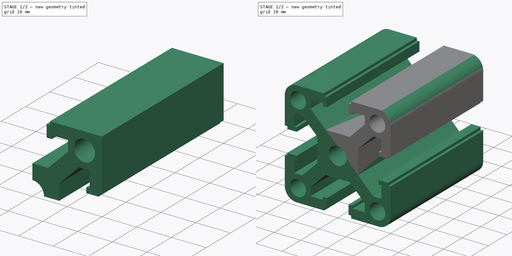
[diagram: build sequence overview — one tinted view per stage of 2, left to right]
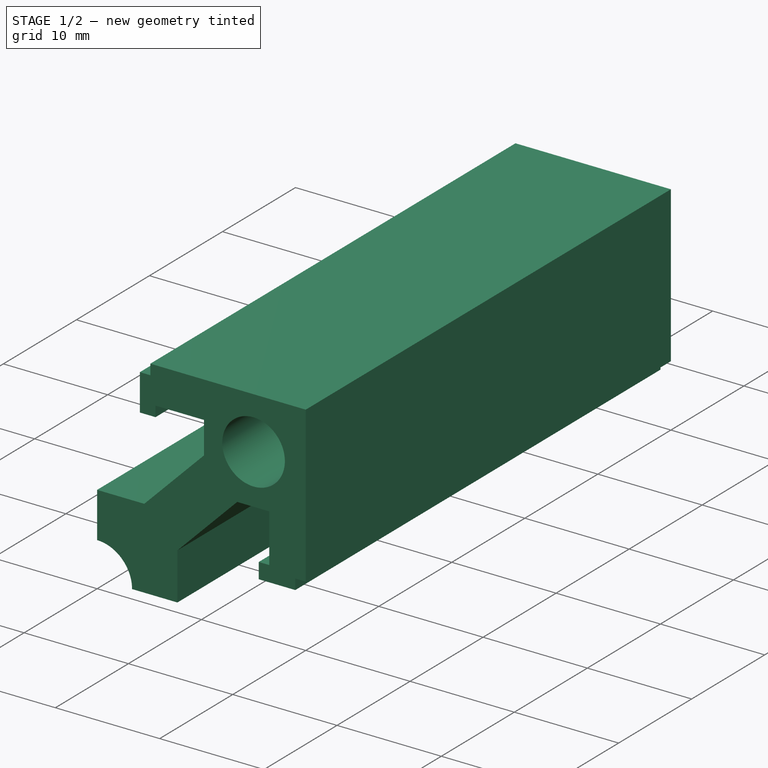
[diagram: stage 1 of 2 — iso view after this stage's code; geometry added in this stage tinted green]
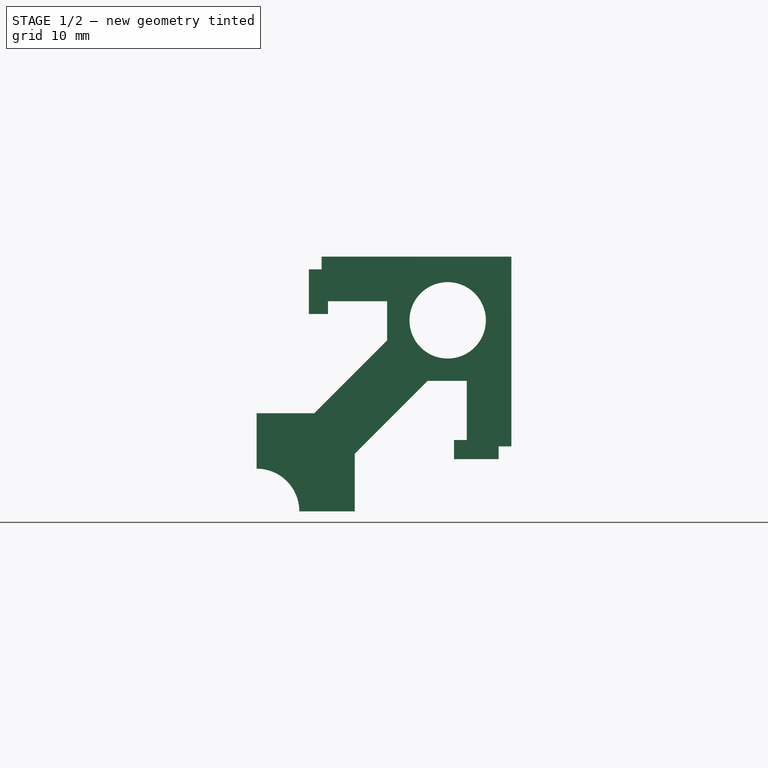
[diagram: stage 1 of 2 — front view after this stage's code; geometry added in this stage tinted green]
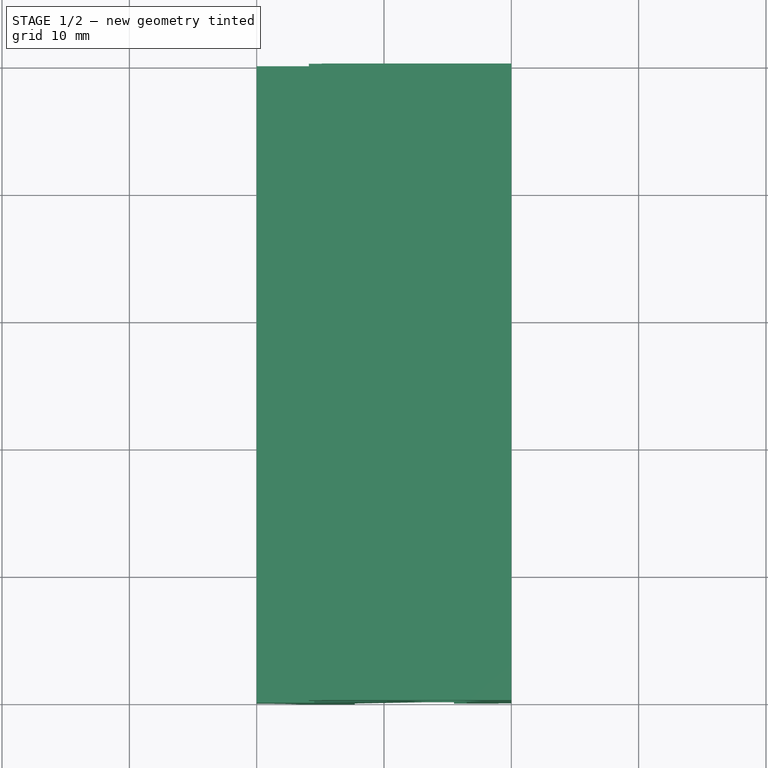
[diagram: stage 1 of 2 — top view after this stage's code; geometry added in this stage tinted green]
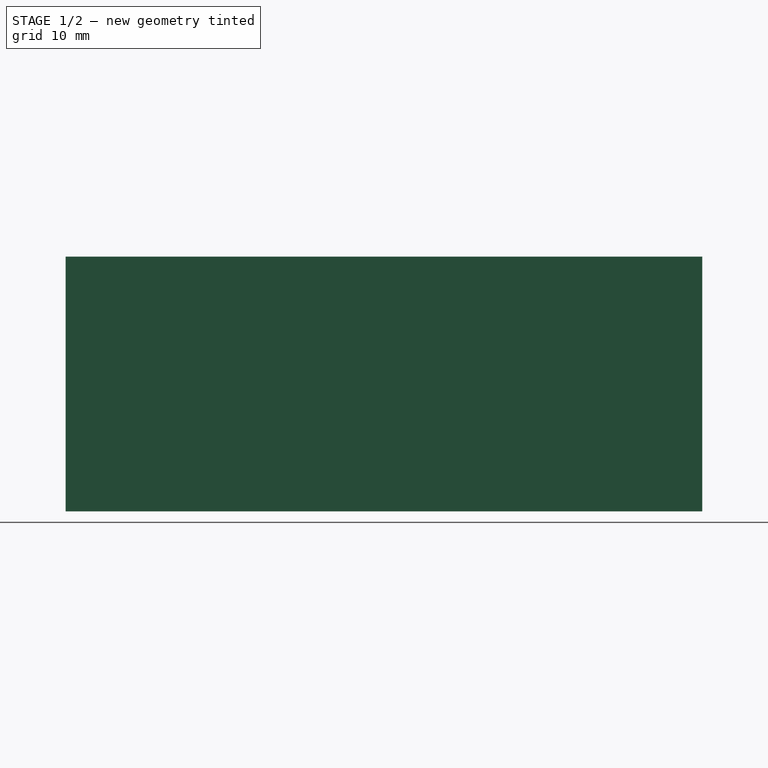
[diagram: stage 1 of 2 — right view after this stage's code; geometry added in this stage tinted green]
FCSTD DOCUMENT  (FreeCAD 1.0R39319 (Git))
Label: AlmProfile-4040
License: All rights reserved
LicenseURL: https://en.wikipedia.org/wiki/All_rights_reserved
objects: Sketcher::SketchObject×2, PartDesign::Pad×1, PartDesign::Pocket×1, PartDesign::PolarPattern×1, PartDesign::Fillet×1, PartDesign::Body×1
note: 16 computed .brp shape members not serialized (recipe doc carries the construction recipe); baked Part::Feature solids carry a one-line shape summary decoded from their .brp

FEATURE [Sketcher::SketchObject] Sketch
  ArcFitTolerance = 1e-06
  AttachmentSupport = -> [XZ_Plane]
  FullyConstrained = true
  MakeInternals = false
  MapMode = 5
  Placement = pos=(0,0,0) rot=(1,0,0;1.5708rad)
  sketch-geometry (28):
    g0: LineSegment StartX=2e-16 StartY=7.7 StartZ=0 EndX=4.51802 EndY=7.7 EndZ=0
    g1: LineSegment StartX=7.7 StartY=4.51802 StartZ=0 EndX=7.7 EndY=0 EndZ=0
    g2: LineSegment StartX=4.1 StartY=15.5 StartZ=0 EndX=4.1 EndY=20 EndZ=0
    g3: LineSegment StartX=4.1 StartY=20 StartZ=0 EndX=20 EndY=20 EndZ=0
    g4: LineSegment StartX=20 StartY=20 StartZ=0 EndX=20 EndY=4.1 EndZ=0
    g5: LineSegment StartX=20 StartY=4.1 StartZ=0 EndX=15.5 EndY=4.1 EndZ=0
    g6: ArcOfCircle CenterX=0 CenterY=0 CenterZ=0 NormalX=0 NormalY=0 NormalZ=1 AngleXU=0 Radius=3.35 StartAngle=0 EndAngle=1.5708
    g7: LineSegment StartX=2e-16 StartY=7.7 StartZ=0 EndX=2e-16 EndY=3.35 EndZ=0
    g8: LineSegment StartX=3.35 StartY=0 StartZ=0 EndX=7.7 EndY=0 EndZ=0
    g9: LineSegment [constr] StartX=20 StartY=20 StartZ=0 EndX=20 EndY=0 EndZ=0
    g10: LineSegment [constr] StartX=20 StartY=20 StartZ=0 EndX=0 EndY=20 EndZ=0
    g11: Circle CenterX=15 CenterY=15 CenterZ=0 NormalX=0 NormalY=0 NormalZ=1 AngleXU=0 Radius=3
    g12: LineSegment [constr] StartX=15 StartY=15 StartZ=0 EndX=0 EndY=15 EndZ=0
    g13: LineSegment [constr] StartX=0 StartY=15 StartZ=0 EndX=0 EndY=0 EndZ=0
    g14: LineSegment [constr] StartX=0 StartY=0 StartZ=0 EndX=15 EndY=0 EndZ=0
    g15: LineSegment [constr] StartX=15 StartY=0 StartZ=0 EndX=15 EndY=15 EndZ=0
    g16: LineSegment [constr] StartX=7.7 StartY=4.51802 StartZ=0 EndX=20 EndY=4.51802 EndZ=0
    g17: LineSegment StartX=4.51802 StartY=7.7 StartZ=0 EndX=10.25 EndY=13.432 EndZ=0
    g18: LineSegment StartX=10.25 StartY=13.432 StartZ=0 EndX=10.25 EndY=16.5 EndZ=0
    g19: LineSegment StartX=10.25 StartY=16.5 StartZ=0 EndX=5.6 EndY=16.5 EndZ=0
    g20: LineSegment StartX=5.6 StartY=16.5 StartZ=0 EndX=5.6 EndY=15.5 EndZ=0
    g21: LineSegment StartX=5.6 StartY=15.5 StartZ=0 EndX=4.1 EndY=15.5 EndZ=0
    g22: LineSegment StartX=7.7 StartY=4.51802 StartZ=0 EndX=13.432 EndY=10.25 EndZ=0
    g23: LineSegment StartX=13.432 StartY=10.25 StartZ=0 EndX=16.5 EndY=10.25 EndZ=0
    g24: LineSegment StartX=16.5 StartY=10.25 StartZ=0 EndX=16.5 EndY=5.6 EndZ=0
    g25: LineSegment StartX=16.5 StartY=5.6 StartZ=0 EndX=15.5 EndY=5.6 EndZ=0
    g26: LineSegment StartX=15.5 StartY=5.6 StartZ=0 EndX=15.5 EndY=4.1 EndZ=0
    g27: LineSegment [constr] StartX=10.25 StartY=13.432 StartZ=0 EndX=13.432 EndY=10.25 EndZ=0
  constraints (81):
    c: PointOnObject(g0,g-2)
    c: Horizontal(g0)
    c: PointOnObject(g1,g-1)
    c: Vertical(g1)
    c: Equal(g0,g1)
    c: Vertical(g2)
    c: Coincident(g2,g3)
    c: Horizontal(g3)
    c: Coincident(g3,g4)
    c: Vertical(g4)
    c: Coincident(g4,g5)
    c: Horizontal(g5)
    c: DistanceX(g-1,g3) = 20
    c: Equal(g4,g3)
    c: Coincident(g7,g0)
    c: Coincident(g7,g6)
    c: Vertical(g7)
    c: Coincident(g8,g6)
    c: Coincident(g8,g1)
    c: Horizontal(g8)
    c: Radius(g6) = 3.35
    c: Coincident(g6,g-1)
    c: Equal(g8,g7)
    c: Coincident(g9,g3)
    c: PointOnObject(g9,g-1)
    c: Vertical(g9)
    c: Coincident(g10,g3)
    c: PointOnObject(g10,g-2)
    c: Horizontal(g10)
    c: Equal(g10,g9)
    c: Coincident(g12,g13)
    c: Coincident(g13,g14)
    c: Coincident(g14,g15)
    c: Coincident(g15,g12)
    c: Horizontal(g12)
    c: Horizontal(g14)
    c: Vertical(g13)
    c: Vertical(g15)
    c: Coincident(g12,g11)
    c: Coincident(g13,g6)
    c: Equal(g15,g12)
    c: DistanceX(g12,g12) = 15
    c: Coincident(g16,g1)
    c: PointOnObject(g16,g9)
    c: Horizontal(g16)
    c: Coincident(g0,g17)
    c: Coincident(g17,g18)
    c: Vertical(g18)
    c: Coincident(g18,g19)
    c: Horizontal(g19)
    c: Coincident(g19,g20)
    c: Coincident(g20,g21)
    c: Coincident(g21,g2)
    c: Coincident(g1,g22)
    c: Coincident(g22,g23)
    c: Horizontal(g23)
    c: Coincident(g23,g24)
    c: Vertical(g24)
    c: Coincident(g24,g25)
    c: Horizontal(g25)
    c: Coincident(g25,g26)
    c: Coincident(g26,g5)
    c: Vertical(g26)
    c: Vertical(g20)
    c: Horizontal(g21)
    c: Parallel(g22,g17)
    c: Coincident(g27,g17)
    c: Coincident(g27,g22)
    c: Angle(g16,g22) = 0.785398
    c: Equal(g2,g5)
    c: Equal(g21,g26)
    c: Equal(g24,g19)
    c: DistanceX(g-1,g2) = 4.1
    c: DistanceX(g-1,g18) = 10.25
    c: Diameter(g11) = 6
    c: DistanceY(g2,g2) = 4.5
    c: DistanceY(g0,g2) = 12.3
    c: Equal(g18,g23)
    c: Equal(g27,g2)
    c: DistanceY(g19,g2) = 3.5
    c: Distance(g21,g21) = 1.5
FEATURE [PartDesign::Pad] Pad
  Direction = (0,-1,2e-16)
  Length = 50
  Length2 = 10
  Placement = pos=(0,0,0) rot=(1,0,0;1.5708rad)
  Profile = -> Sketch
  ReferenceAxis = -> Sketch [N_Axis]
  Refine = true
  Suppressed = false
  Type = 0
FEATURE [Sketcher::SketchObject] Sketch001
  ArcFitTolerance = 1e-06
  AttachmentSupport = -> [XZ_Plane]
  ExternalGeometry = -> [Pad]
  FullyConstrained = true
  MakeInternals = false
  MapMode = 5
  Placement = pos=(0,0,0) rot=(1,0,0;1.5708rad)
  sketch-geometry (8):
    g0: LineSegment StartX=4.1 StartY=20 StartZ=0 EndX=4.1 EndY=19 EndZ=0
    g1: LineSegment StartX=4.1 StartY=19 StartZ=0 EndX=5.1 EndY=19 EndZ=0
    g2: LineSegment StartX=5.1 StartY=19 StartZ=0 EndX=5.1 EndY=20 EndZ=0
    g3: LineSegment StartX=5.1 StartY=20 StartZ=0 EndX=4.1 EndY=20 EndZ=0
    g4: LineSegment StartX=20 StartY=4.1 StartZ=0 EndX=20 EndY=5.1 EndZ=0
    g5: LineSegment StartX=20 StartY=5.1 StartZ=0 EndX=19 EndY=5.1 EndZ=0
    g6: LineSegment StartX=19 StartY=5.1 StartZ=0 EndX=19 EndY=4.1 EndZ=0
    g7: LineSegment StartX=19 StartY=4.1 StartZ=0 EndX=20 EndY=4.1 EndZ=0
  constraints (22):
    c: Coincident(g0,g1)
    c: Coincident(g1,g2)
    c: Coincident(g2,g3)
    c: Coincident(g3,g0)
    c: Vertical(g0)
    c: Vertical(g2)
    c: Horizontal(g1)
    c: Horizontal(g3)
    c: Coincident(g4,g5)
    c: Coincident(g5,g6)
    c: Coincident(g6,g7)
    c: Coincident(g7,g4)
    c: Vertical(g4)
    c: Vertical(g6)
    c: Horizontal(g5)
    c: Horizontal(g7)
    c: Equal(g6,g7)
    c: Equal(g7,g2)
    c: Equal(g2,g1)
    c: Coincident(g4,g-4)
    c: Coincident(g0,g-3)
    c: DistanceX(g3,g3) = 1
FEATURE [PartDesign::Pocket] Pocket
  BaseFeature = -> Pad
  Direction = (0,1,-2e-16)
  Length = 5
  Length2 = 5
  Placement = pos=(0,0,0) rot=(1,0,0;1.5708rad)
  Profile = -> Sketch001
  ReferenceAxis = -> Sketch001 [N_Axis]
  Refine = true
  Reversed = true
  Suppressed = false
  Type = 1
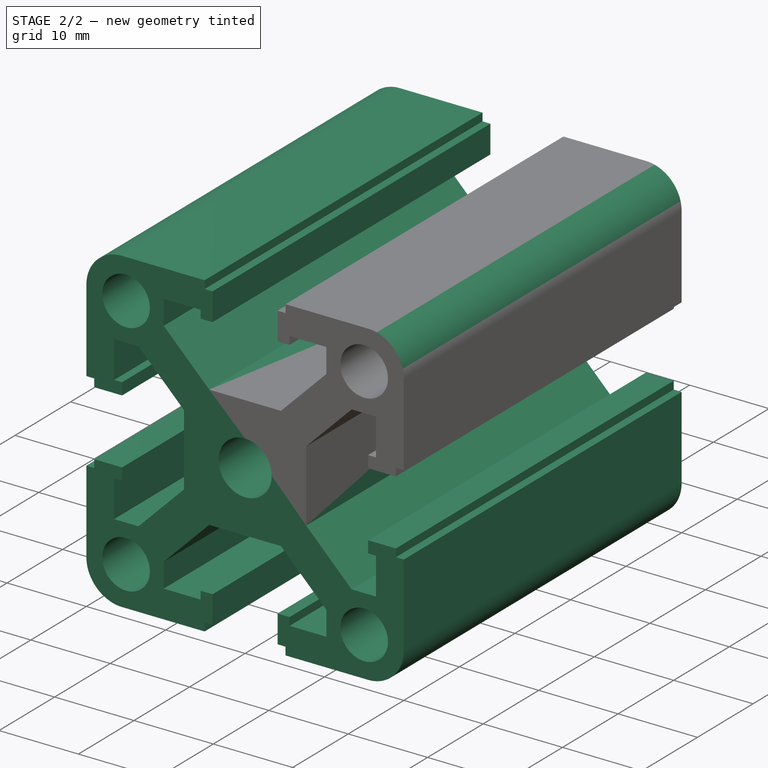
[diagram: stage 2 of 2 — iso view after this stage's code; geometry added in this stage tinted green]
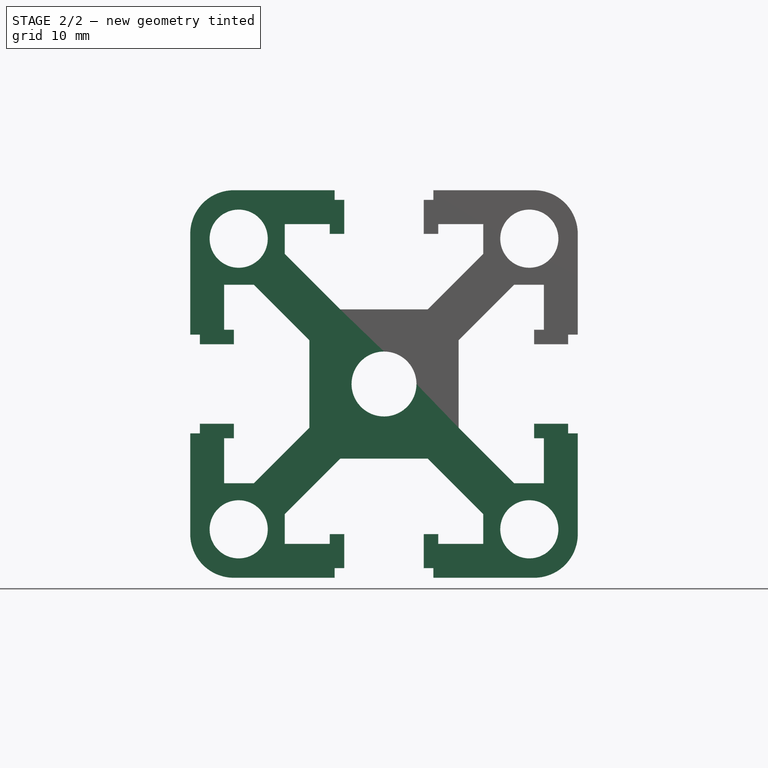
[diagram: stage 2 of 2 — front view after this stage's code; geometry added in this stage tinted green]
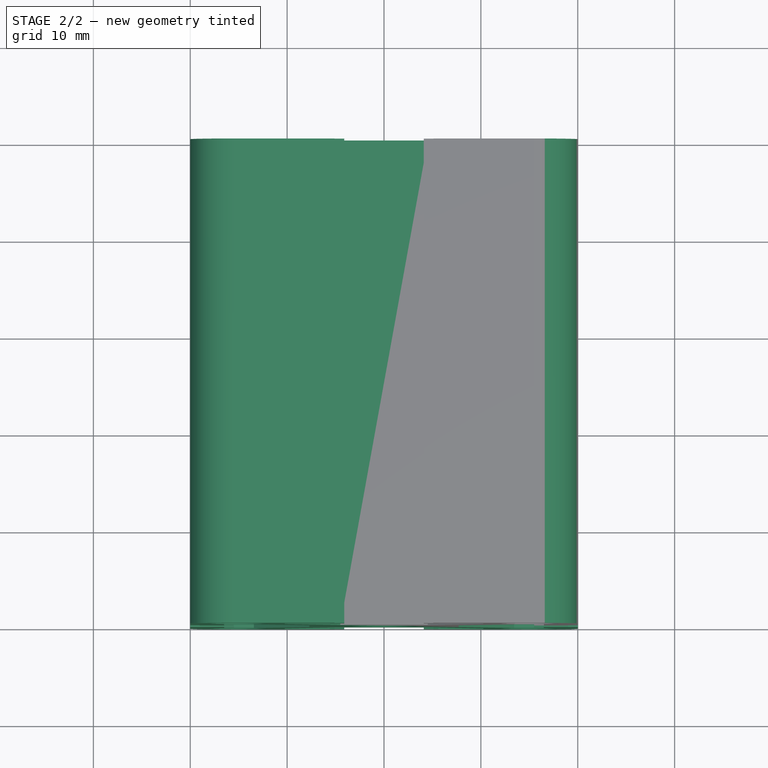
[diagram: stage 2 of 2 — top view after this stage's code; geometry added in this stage tinted green]
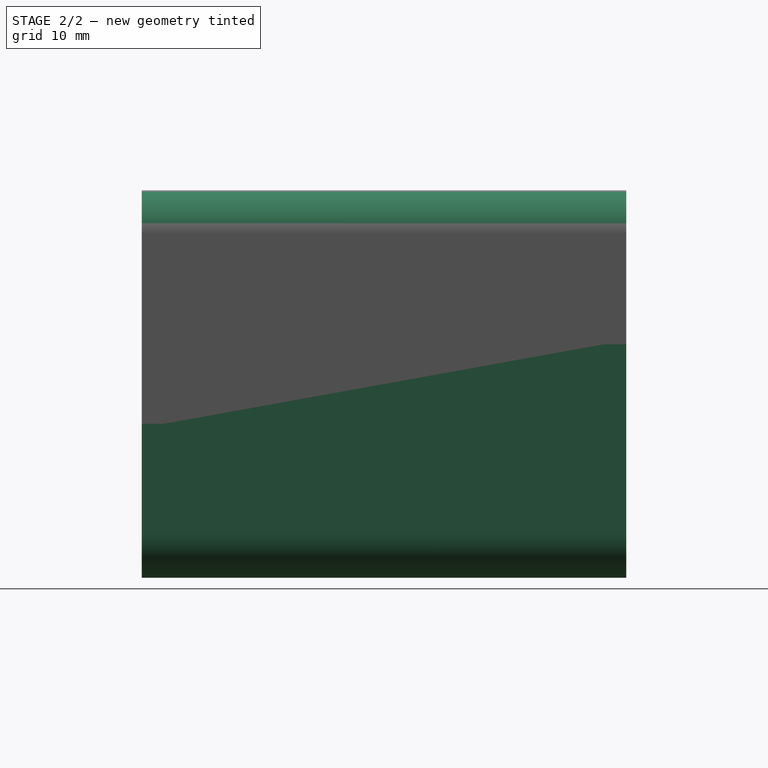
[diagram: stage 2 of 2 — right view after this stage's code; geometry added in this stage tinted green]
FEATURE [PartDesign::PolarPattern] PolarPattern
  Angle = 360
  Axis = -> Y_Axis
  BaseFeature = -> Pocket
  Mode = 0
  Occurrences = 4
  Offset = 120
  Placement = pos=(0,0,0) rot=(1,0,0;1.5708rad)
  Refine = true
  Suppressed = false
  TransformMode = 1
FEATURE [PartDesign::Fillet] Fillet
  Base = -> PolarPattern [Edge177,Edge214,Edge28,Edge140]
  BaseFeature = -> PolarPattern
  Placement = pos=(0,0,0) rot=(1,0,0;1.5708rad)
  Radius = 4.5
  Refine = true
  SupportTransform = false
  Suppressed = false
  UseAllEdges = false
FEATURE [PartDesign::Body] Body
  AllowCompound = false
  Group = -> [Sketch,Pad,Sketch001,Pocket,PolarPattern,Fillet]
  Origin = -> Origin
  Placement = pos=(0,0,0) rot=(1,0,0;4.71239rad)
  Tip = -> Fillet
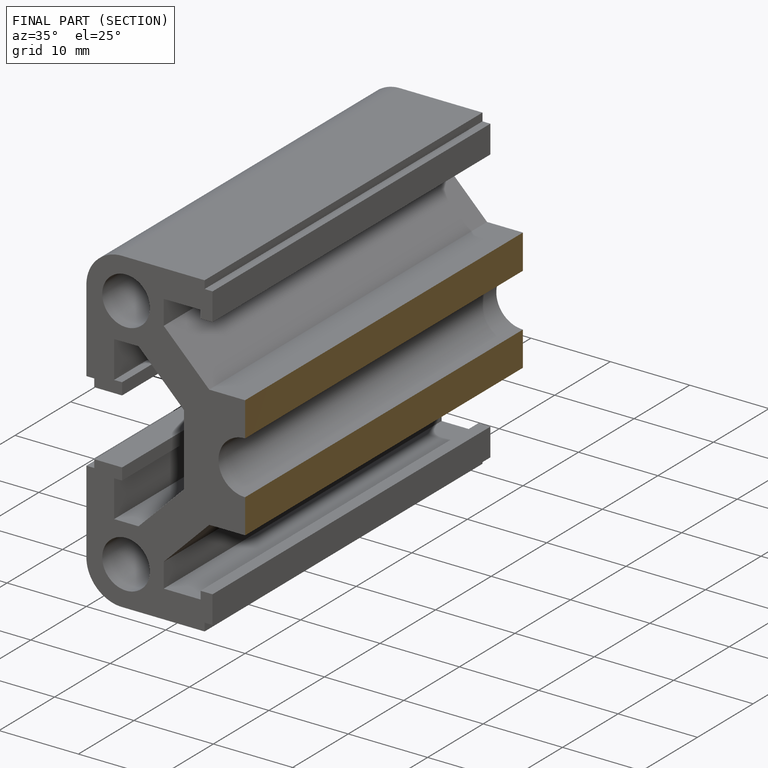
[diagram: finished part — half-section view (interior)]
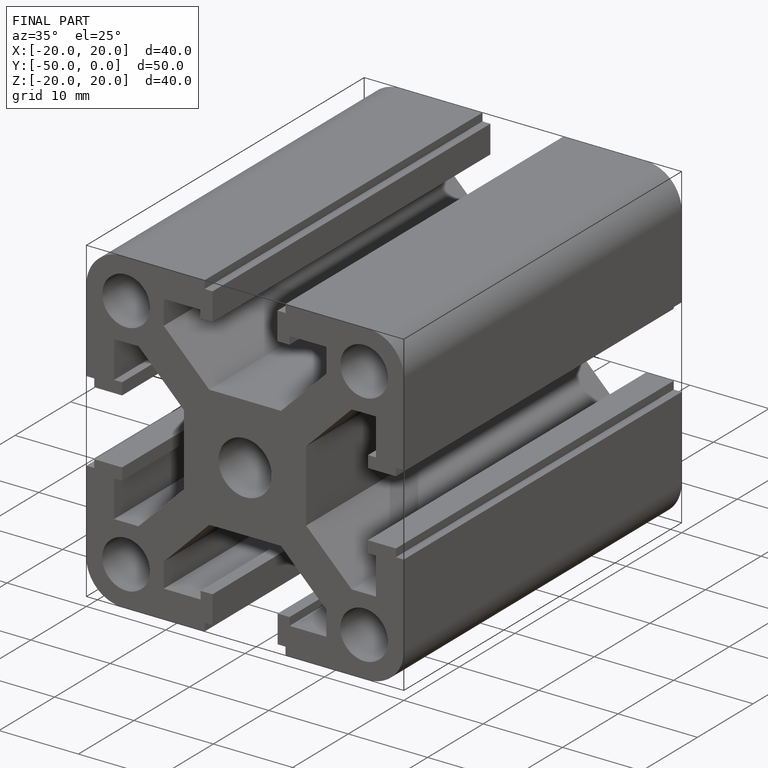
[diagram: finished part — iso view with bounding-box wireframe]
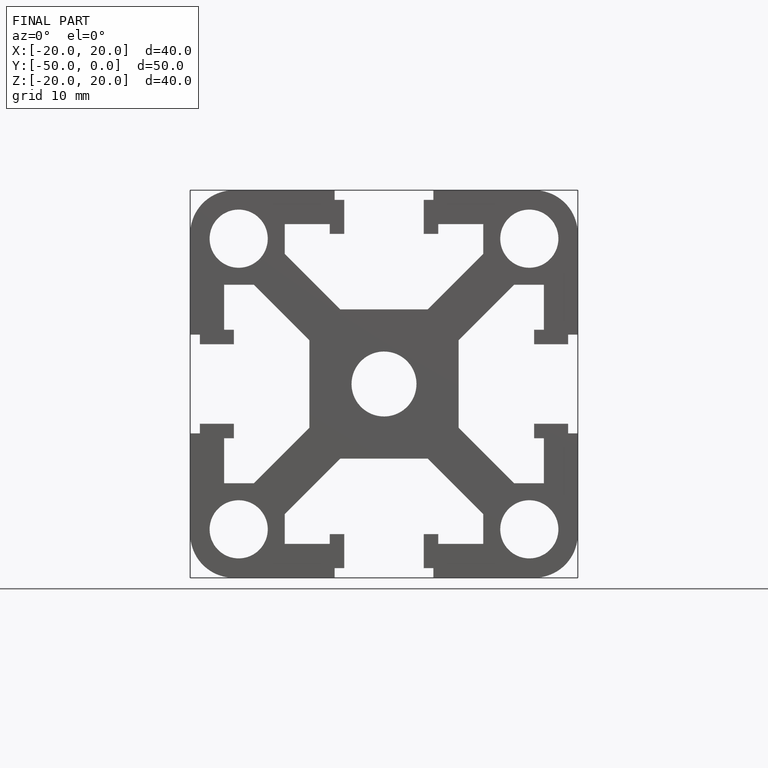
[diagram: finished part — front view with bounding-box wireframe]
